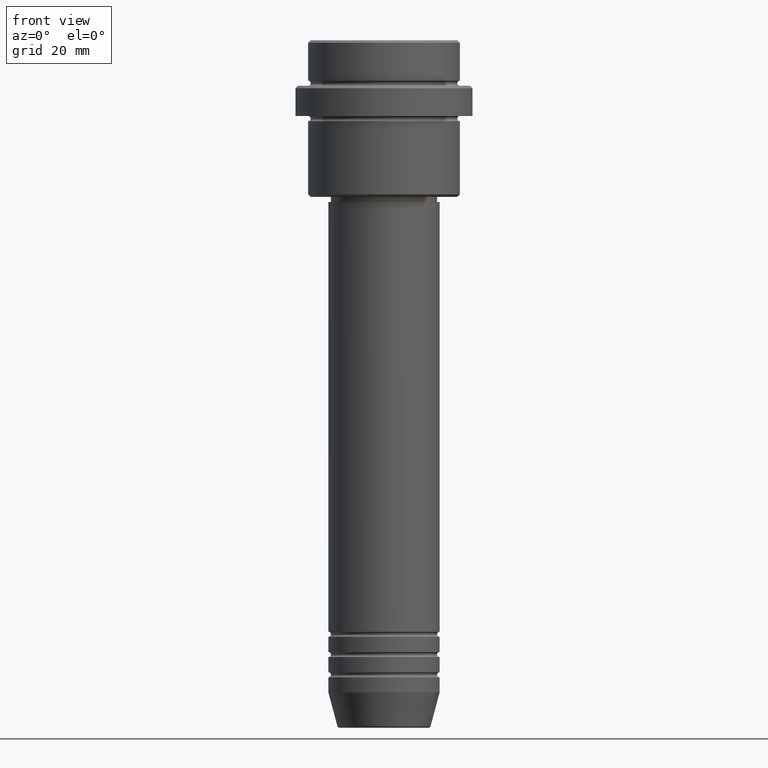
[diagram: clean part render]
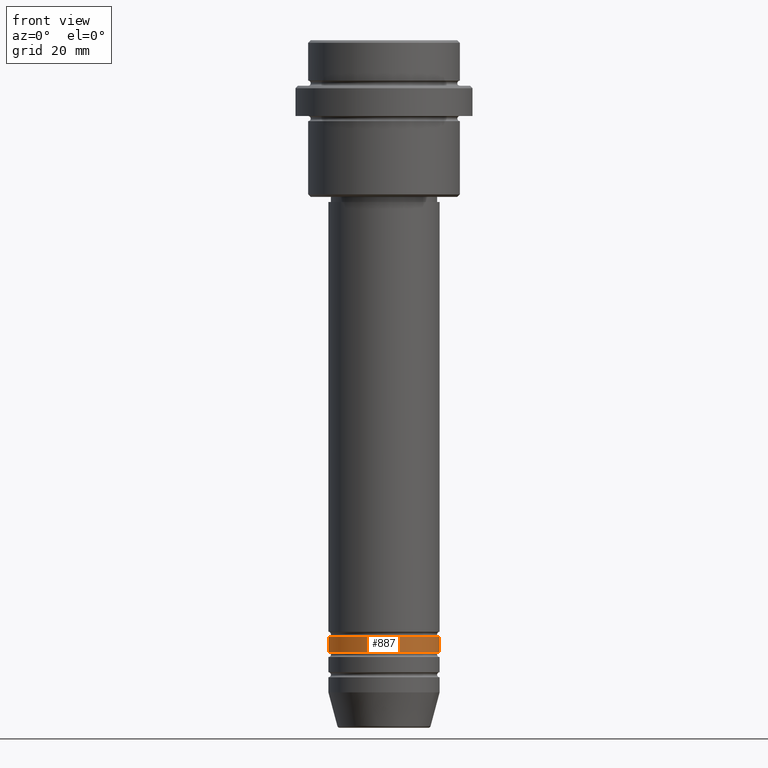
[diagram: same view with one face highlighted and labeled with its STEP entity id]
A machine part, front view. The second image highlights one B-rep face of the part: STEP entity #887.
In plain terms, the highlighted cylindrical surface (partial cylindrical patch) has radius 11 mm, axis along (-0, -0, 1).
Its self-contained STEP definition (entity closure, byte-faithful):
#15 = CYLINDRICAL_SURFACE ( 'NONE', #1033, 11.00000000000000000 ) ;
#69 = EDGE_CURVE ( 'NONE', #567, #1095, #114, .T. ) ;
#114 = CIRCLE ( 'NONE', #1348, 11.00000000000000000 ) ;
#143 = LINE ( 'NONE', #692, #717 ) ;
#159 = VERTEX_POINT ( 'NONE', #425 ) ;
#205 = EDGE_LOOP ( 'NONE', ( #613, #1128, #1347, #1093 ) ) ;
#292 = VERTEX_POINT ( 'NONE', #1237 ) ;
#350 = VECTOR ( 'NONE', #1396, 1000.000000000000000 ) ;
#425 = CARTESIAN_POINT ( 'NONE',  ( 11.00000000000000000, 0.000000000000000000, -120.9999999999999005 ) ) ;
#441 = DIRECTION ( 'NONE',  ( -0.000000000000000000, -0.000000000000000000, 1.000000000000000000 ) ) ;
#444 = DIRECTION ( 'NONE',  ( -0.000000000000000000, -0.000000000000000000, 1.000000000000000000 ) ) ;
#448 = CARTESIAN_POINT ( 'NONE',  ( -11.00000000000000000, 1.347111479062088405E-15, -117.9999999999999005 ) ) ;
#547 = AXIS2_PLACEMENT_3D ( 'NONE', #1121, #444, #763 ) ;
#567 = VERTEX_POINT ( 'NONE', #448 ) ;
#572 = EDGE_CURVE ( 'NONE', #292, #159, #824, .T. ) ;
#613 = ORIENTED_EDGE ( 'NONE', *, *, #1297, .F. ) ;
#649 = FACE_OUTER_BOUND ( 'NONE', #205, .T. ) ;
#692 = CARTESIAN_POINT ( 'NONE',  ( 11.00000000000000000, 0.000000000000000000, 0.000000000000000000 ) ) ;
#717 = VECTOR ( 'NONE', #949, 1000.000000000000000 ) ;
#732 = LINE ( 'NONE', #746, #350 ) ;
#746 = CARTESIAN_POINT ( 'NONE',  ( -11.00000000000000000, 1.347111479062088405E-15, 0.000000000000000000 ) ) ;
#763 = DIRECTION ( 'NONE',  ( 1.000000000000000000, 0.000000000000000000, 0.000000000000000000 ) ) ;
#824 = CIRCLE ( 'NONE', #547, 11.00000000000000000 ) ;
#838 = DIRECTION ( 'NONE',  ( 1.000000000000000000, 0.000000000000000000, 0.000000000000000000 ) ) ;
#873 = CARTESIAN_POINT ( 'NONE',  ( 11.00000000000000000, 0.000000000000000000, -117.9999999999999005 ) ) ;
#882 = CARTESIAN_POINT ( 'NONE',  ( 0.000000000000000000, 0.000000000000000000, 0.000000000000000000 ) ) ;
#887 = ADVANCED_FACE ( 'NONE', ( #649 ), #15, .T. ) ;
#941 = EDGE_CURVE ( 'NONE', #159, #1095, #143, .T. ) ;
#949 = DIRECTION ( 'NONE',  ( -0.000000000000000000, -0.000000000000000000, 1.000000000000000000 ) ) ;
#1033 = AXIS2_PLACEMENT_3D ( 'NONE', #882, #441, #1085 ) ;
#1085 = DIRECTION ( 'NONE',  ( 1.000000000000000000, 0.000000000000000000, 0.000000000000000000 ) ) ;
#1093 = ORIENTED_EDGE ( 'NONE', *, *, #69, .F. ) ;
#1095 = VERTEX_POINT ( 'NONE', #873 ) ;
#1121 = CARTESIAN_POINT ( 'NONE',  ( 0.000000000000000000, 0.000000000000000000, -120.9999999999999005 ) ) ;
#1128 = ORIENTED_EDGE ( 'NONE', *, *, #572, .T. ) ;
#1166 = DIRECTION ( 'NONE',  ( -0.000000000000000000, -0.000000000000000000, 1.000000000000000000 ) ) ;
#1237 = CARTESIAN_POINT ( 'NONE',  ( -11.00000000000000000, 1.347111479062088405E-15, -120.9999999999999005 ) ) ;
#1257 = CARTESIAN_POINT ( 'NONE',  ( 0.000000000000000000, 0.000000000000000000, -117.9999999999999005 ) ) ;
#1297 = EDGE_CURVE ( 'NONE', #292, #567, #732, .T. ) ;
#1347 = ORIENTED_EDGE ( 'NONE', *, *, #941, .T. ) ;
#1348 = AXIS2_PLACEMENT_3D ( 'NONE', #1257, #1166, #838 ) ;
#1396 = DIRECTION ( 'NONE',  ( -0.000000000000000000, -0.000000000000000000, 1.000000000000000000 ) ) ;